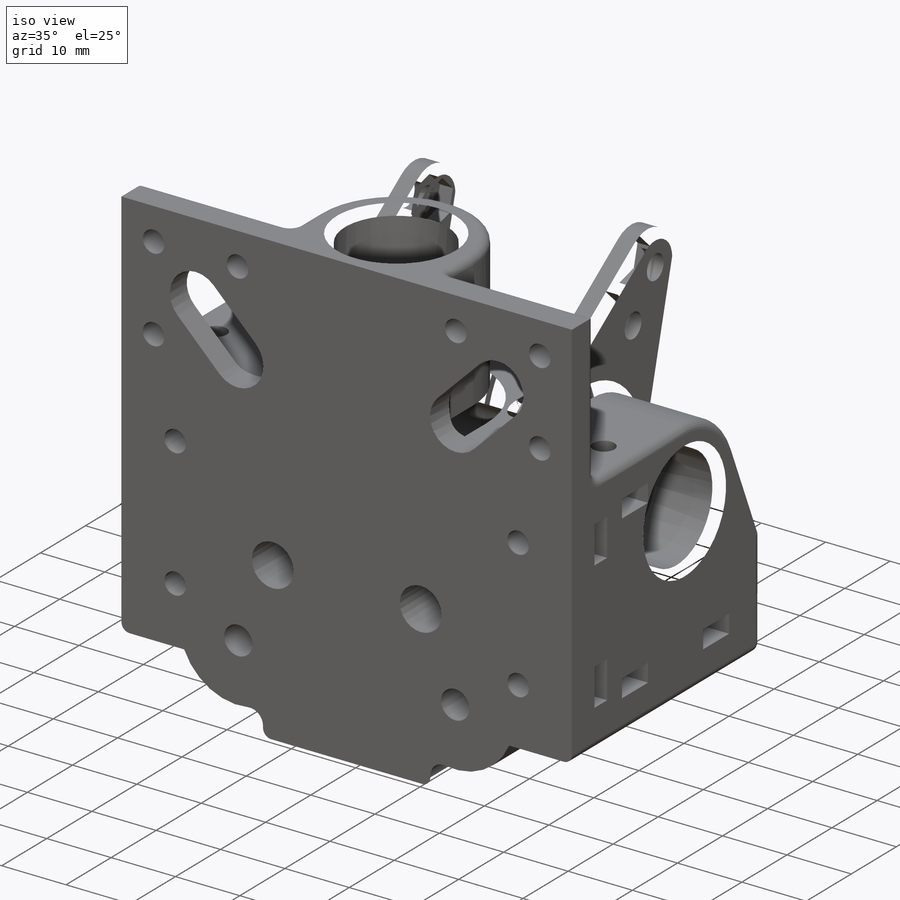
[diagram: iso view]
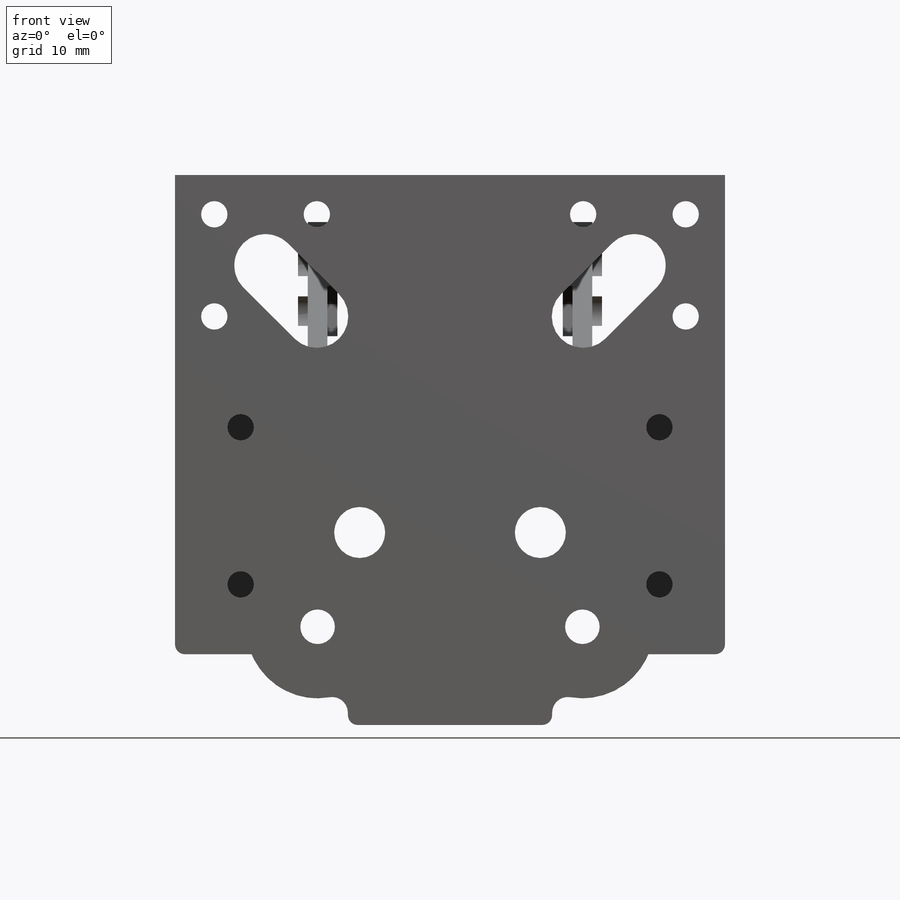
[diagram: front view]
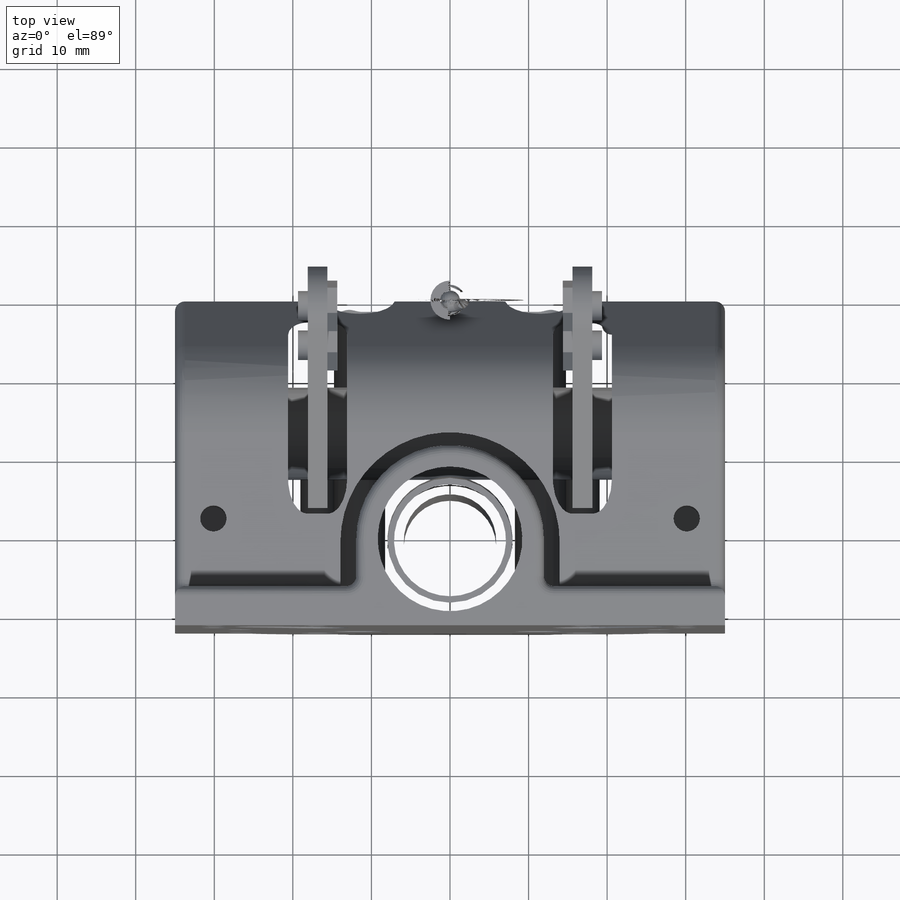
[diagram: top view]
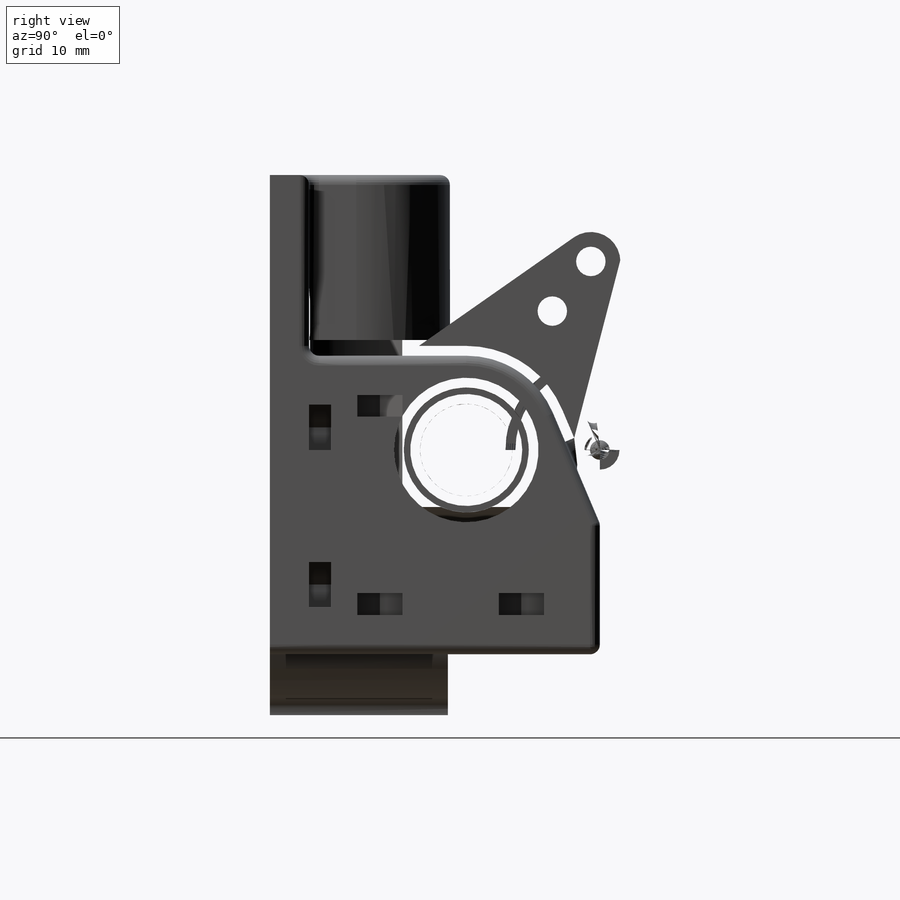
[diagram: right view]
SOLIDWORKS PART (.sldprt)
format: sldprt  version: not decoded by parser v0  size: 1,826,816 bytes
history: native  units: mm
features: sketch x22, cut_extrude x18, extrude x8, fillet x5, plane x4, mirror x2, material x1, revolve x1 (+13 scaffold rows collapsed)
feature tree (74):
  scaffold x13  (default folders/planes/origin — collapsed)
  material  "ABS"
  sketch  "Sketch1"  dims[D1=70.0mm D2=70.0mm]
  extrude  "Boss-Extrude1"  Depth=42mm
  sketch  "Sketch2"  dims[D2=11.75mm D1=11.0mm]
  cut_extrude  "Cut-Extrude1"  [1 undecoded]
  sketch  "Sketch3"  dims[D1=11.75mm D2=14.0mm]
  cut_extrude  "Cut-Extrude2"  [1 undecoded]
  extrude  "Axis2"  [1 undecoded]
  sketch  "Sketch4"  dims[D1=15.9mm]
  cut_extrude  "Cut-Extrude3"  Depth=10mm
  sketch  "Sketch5"
  cut_extrude  "Cut-Extrude4"  Depth=10mm
  sketch  "Sketch6"  dims[D1=15.9mm]
  cut_extrude  "Cut-Extrude5"  Depth=10mm
  sketch  "Sketch7"
  cut_extrude  "Cut-Extrude6"  Depth=10mm
  sketch  "Sketch8"  dims[c1.D2=~11.732543mm c1.D3=12.3mm c1.D4=16.3mm c1.D5=25.5mm c1.D6=25.5mm c1.D1=12.5mm c2.D2=18.0mm c2.D6=12.5mm c3.D6=4.0deg c3.D2=10.0mm c3.D7=7.0mm]
  cut_extrude  "Cut-Extrude7"  Depth=18.1mm
  plane  "Plane5"
  sketch  "Sketch25"  dims[D1=2.2mm D2=6.5mm D3=1.0mm]
  extrude  "Axis5"  [1 undecoded]
  extrude  "Axis6"  [1 undecoded]
  revolve  "Revolve1"  Angle=180deg
  mirror  "Mirror2"
  sketch  "Sketch9"  dims[c1.D1=24.0mm c1.D4=4.0mm c1.D2=5.0mm c1.D3=4.0mm c2.D2=5.0mm]
  cut_extrude  "Cut-Extrude8"  [1 undecoded]
  sketch  "Sketch10"  dims[D1=5.0mm]
  cut_extrude  "Cut-Extrude10"  [1 undecoded]
  sketch  "Sketch12"  dims[c1.D1=4.4mm c1.D4=2.0mm c1.D2=5.0mm c1.D3=5.0mm c2.D2=13.0mm c2.D3=13.0mm]
  cut_extrude  "Cut-Extrude11"  [1 undecoded]
  sketch  "Sketch13"  dims[c1.D1=5.75mm c1.D2=5.75mm c2.D1=~2.907499mm c2.D2=6.0mm c2.D3=8.35mm c2.D4=2.0]
  cut_extrude  "Cut-Extrude12"  Depth=2.8mm
  sketch  "Sketch14"  dims[D1=3.35mm D2=3.35mm D8=8.0mm D3=5.0mm D4=5.0mm D5=5.0mm D6=5.0mm D7=2.0]
  cut_extrude  "Cut-Extrude13"  Depth=10mm
  plane  "Plane1"  Offset=5mm
  sketch  "Sketch15"  dims[c1.D1=5.75mm c1.D2=5.75mm c1.D3=5.75mm c2.D2=8.0mm c2.D3=10.0mm c2.D4=2.0]
  cut_extrude  "Cut-Extrude14"  Depth=2.8mm
  sketch  "Sketch16"  dims[c1.D1=3.35mm c1.D3=3.35mm c1.D4=3.35mm c1.D2=8.0mm c2.D3=5.0mm c2.D4=5.0mm c3.D3=2.0]
  cut_extrude  "Cut-Extrude15"  Depth=10mm
  plane  "Plane4"  Offset=5mm
  sketch  "Sketch22"
  cut_extrude  "Cut-Extrude17"  Depth=2.75mm
  sketch  "Sketch23"
  cut_extrude  "Cut-Extrude18"  Depth=10mm
  extrude  "Axis3"  [1 undecoded]
  extrude  "Axis4"  [1 undecoded]
  plane  "Plane3"
  sketch  "Sketch19"  dims[c1.D2=10.0mm c1.D3=5.0mm c2.D2=5.0mm c2.D4=3.75mm c2.D5=3.75mm c2.D6=3.75mm c2.D1=~7.107736mm c3.D1=35.0deg c3.D3=33.4442mm c3.D2=12.0mm c3.D5=8.0mm c3.D6=8.0mm]
  extrude  "Boss-Extrude3"  Depth=5mm
  sketch  "Sketch20"  dims[D1=5.75mm]
  cut_extrude  "Cut-Extrude16"  Depth=2mm
  mirror  "Mirror1"
  sketch  "Sketch27"  dims[c1.D1=6.5mm c1.D2=8.0mm c1.D3=8.15mm c2.D2=11.5mm c2.D3=12.0mm]
  cut_extrude  "Cut-Extrude19"  [1 undecoded]
  fillet  "Fillet1"  Radius=1.25mm
  fillet  "Fillet2"  Radius=1mm
  fillet  "Fillet3"  Radius=2mm
  fillet  "Fillet4"  Radius=1.25mm
  fillet  "Fillet5"  Radius=1mm
  sketch  "Sketch21"  dims[D2=13.0mm D1=0.0mm]
  extrude  "Print Hold Down Pads"  Depth=0.56mm
decode coverage: 39 of 56 modeling features carry decoded parameters
note: ~ marks probable driven/reference dimensions
note: 11 parameter values undecoded
summary: no parameter record found for 11 features
note: suppression state not decoded; provenance and decode notes live in map.json
